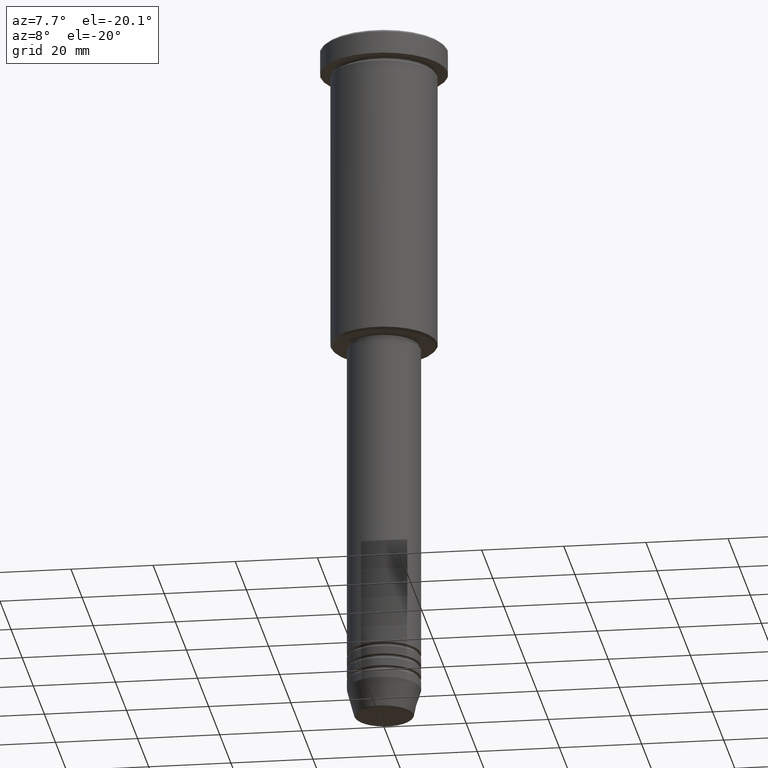
[diagram: clean part render]
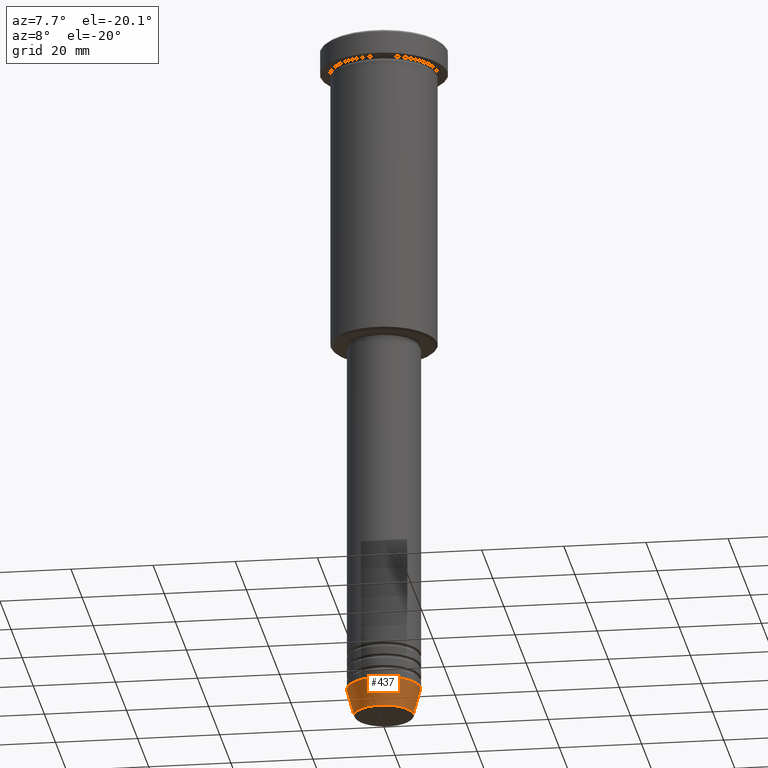
[diagram: same view with one face highlighted and labeled with its STEP entity id]
A machine part, auxiliary view. The second image highlights one B-rep face of the part: STEP entity #437.
In plain terms, the highlighted conical surface has half-angle 15 deg.
Its self-contained STEP definition (entity closure, byte-faithful):
#39 = CARTESIAN_POINT ( 'NONE',  ( -9.000000000000000000, 1.102182119232617714E-15, -164.0000000000000000 ) ) ;
#64 = DIRECTION ( 'NONE',  ( 1.000000000000000000, 0.000000000000000000, 0.000000000000000000 ) ) ;
#151 = DIRECTION ( 'NONE',  ( 1.000000000000000000, 0.000000000000000000, 0.000000000000000000 ) ) ;
#159 = DIRECTION ( 'NONE',  ( -0.000000000000000000, -0.000000000000000000, 1.000000000000000000 ) ) ;
#161 = VERTEX_POINT ( 'NONE', #578 ) ;
#235 = AXIS2_PLACEMENT_3D ( 'NONE', #1157, #247, #151 ) ;
#247 = DIRECTION ( 'NONE',  ( -0.000000000000000000, -0.000000000000000000, 1.000000000000000000 ) ) ;
#256 = VERTEX_POINT ( 'NONE', #1179 ) ;
#291 = VECTOR ( 'NONE', #740, 1000.000000000000000 ) ;
#315 = CARTESIAN_POINT ( 'NONE',  ( 9.000000000000000000, 0.000000000000000000, -164.0000000000000000 ) ) ;
#380 = LINE ( 'NONE', #922, #291 ) ;
#412 = AXIS2_PLACEMENT_3D ( 'NONE', #770, #159, #64 ) ;
#437 = ADVANCED_FACE ( 'NONE', ( #1146 ), #915, .T. ) ;
#496 = EDGE_CURVE ( 'NONE', #256, #637, #931, .T. ) ;
#533 = CARTESIAN_POINT ( 'NONE',  ( 0.000000000000000000, 0.000000000000000000, -170.6294095225512706 ) ) ;
#538 = DIRECTION ( 'NONE',  ( 1.000000000000000000, 0.000000000000000000, 0.000000000000000000 ) ) ;
#544 = ORIENTED_EDGE ( 'NONE', *, *, #496, .F. ) ;
#578 = CARTESIAN_POINT ( 'NONE',  ( 7.223655072137196598, 0.000000000000000000, -170.6294095225512706 ) ) ;
#637 = VERTEX_POINT ( 'NONE', #39 ) ;
#665 = ORIENTED_EDGE ( 'NONE', *, *, #863, .T. ) ;
#676 = VERTEX_POINT ( 'NONE', #315 ) ;
#709 = EDGE_CURVE ( 'NONE', #637, #676, #898, .T. ) ;
#728 = ORIENTED_EDGE ( 'NONE', *, *, #1149, .T. ) ;
#740 = DIRECTION ( 'NONE',  ( 0.2588190451025213501, 0.000000000000000000, 0.9659258262890680902 ) ) ;
#770 = CARTESIAN_POINT ( 'NONE',  ( 0.000000000000000000, 0.000000000000000000, -164.0000000000000000 ) ) ;
#810 = DIRECTION ( 'NONE',  ( -0.000000000000000000, -0.000000000000000000, 1.000000000000000000 ) ) ;
#827 = CARTESIAN_POINT ( 'NONE',  ( -9.000000000000000000, 1.102182119232617714E-15, -164.0000000000000000 ) ) ;
#841 = AXIS2_PLACEMENT_3D ( 'NONE', #533, #810, #538 ) ;
#863 = EDGE_CURVE ( 'NONE', #161, #676, #380, .T. ) ;
#867 = CIRCLE ( 'NONE', #841, 7.223655072137196598 ) ;
#898 = CIRCLE ( 'NONE', #235, 9.000000000000000000 ) ;
#912 = DIRECTION ( 'NONE',  ( -0.2588190451025213501, 3.169619151431772337E-17, 0.9659258262890680902 ) ) ;
#915 = CONICAL_SURFACE ( 'NONE', #412, 9.000000000000000000, 0.2617993877991500740 ) ;
#922 = CARTESIAN_POINT ( 'NONE',  ( 9.000000000000000000, 0.000000000000000000, -164.0000000000000000 ) ) ;
#931 = LINE ( 'NONE', #827, #1173 ) ;
#936 = EDGE_LOOP ( 'NONE', ( #544, #728, #665, #1167 ) ) ;
#1146 = FACE_OUTER_BOUND ( 'NONE', #936, .T. ) ;
#1149 = EDGE_CURVE ( 'NONE', #256, #161, #867, .T. ) ;
#1157 = CARTESIAN_POINT ( 'NONE',  ( 0.000000000000000000, 0.000000000000000000, -164.0000000000000000 ) ) ;
#1167 = ORIENTED_EDGE ( 'NONE', *, *, #709, .F. ) ;
#1173 = VECTOR ( 'NONE', #912, 1000.000000000000000 ) ;
#1179 = CARTESIAN_POINT ( 'NONE',  ( -7.223655072137197486, 9.934123627281769054E-16, -170.6294095225512706 ) ) ;